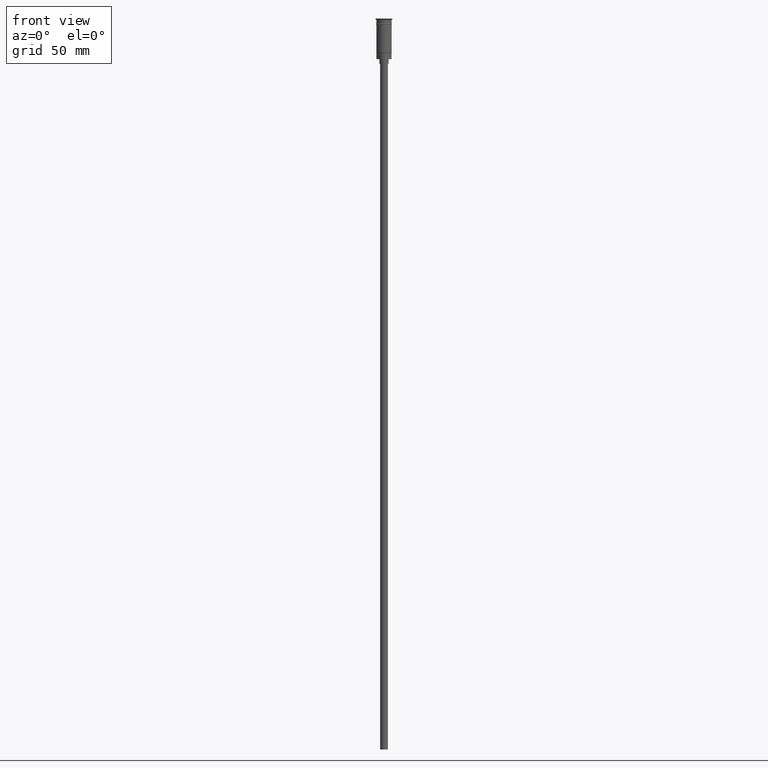
[diagram: clean part render]
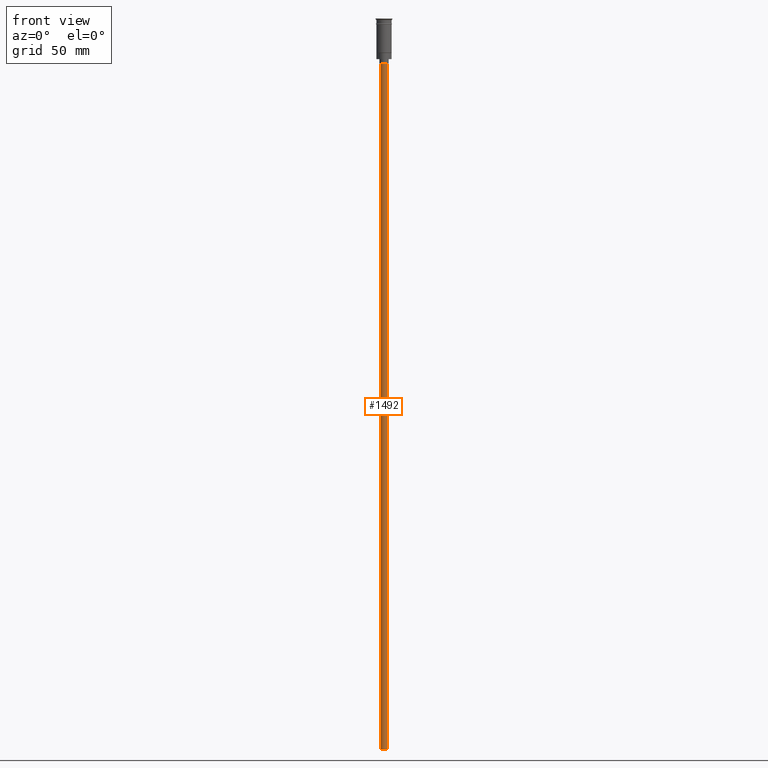
[diagram: same view with one face highlighted and labeled with its STEP entity id]
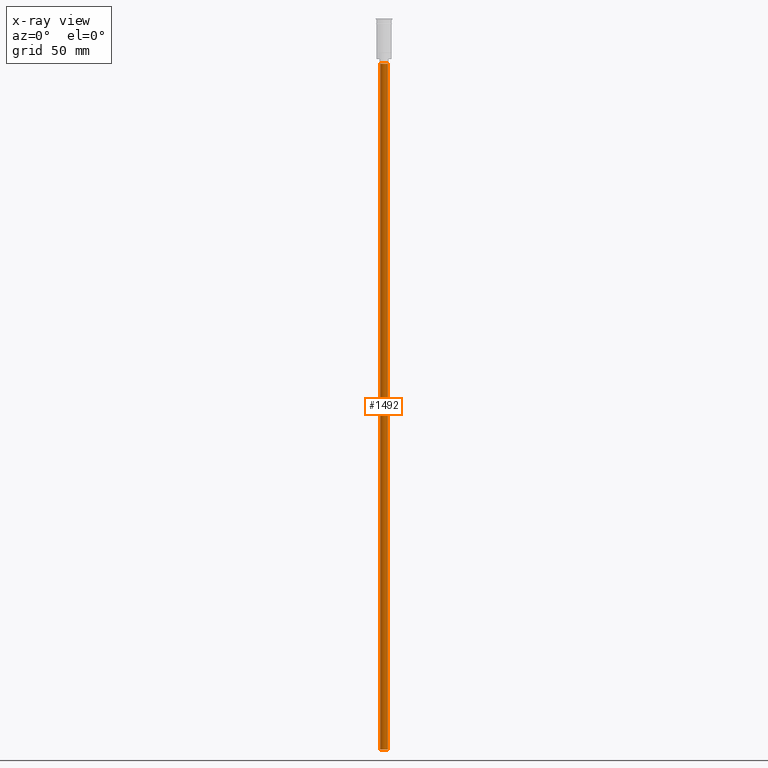
[diagram: x-ray of the same camera — body ghosted, the highlighted face saturated]
A machine part, front view. The second image highlights one B-rep face of the part: STEP entity #1492.
The next image is the same camera in x-ray: the body ghosted, the highlighted face saturated — about 0% of this face is hidden behind the body in this view.
In plain terms, the highlighted cylindrical surface (edge-blend (fillet) strip) has radius 2.5 mm, axis along (-0, -0, 1).
Its self-contained STEP definition (entity closure, byte-faithful):
#13 = VECTOR ( 'NONE', #25, 1000.000000000000000 ) ;
#25 = DIRECTION ( 'NONE',  ( -0.000000000000000000, -0.000000000000000000, 1.000000000000000000 ) ) ;
#30 = ORIENTED_EDGE ( 'NONE', *, *, #430, .T. ) ;
#70 = CARTESIAN_POINT ( 'NONE',  ( 2.500000000000000000, 0.000000000000000000, -476.5000000000000568 ) ) ;
#79 = DIRECTION ( 'NONE',  ( 0.000000000000000000, 0.000000000000000000, -1.000000000000000000 ) ) ;
#80 = DIRECTION ( 'NONE',  ( 1.000000000000000000, 0.000000000000000000, 0.000000000000000000 ) ) ;
#124 = AXIS2_PLACEMENT_3D ( 'NONE', #682, #1191, #80 ) ;
#183 = CARTESIAN_POINT ( 'NONE',  ( 0.000000000000000000, 0.000000000000000000, -476.5000000000000568 ) ) ;
#206 = CYLINDRICAL_SURFACE ( 'NONE', #124, 2.500000000000000000 ) ;
#222 = CIRCLE ( 'NONE', #373, 2.500000000000000000 ) ;
#232 = VERTEX_POINT ( 'NONE', #1368 ) ;
#314 = EDGE_CURVE ( 'NONE', #1511, #1548, #1029, .T. ) ;
#334 = CARTESIAN_POINT ( 'NONE',  ( 0.000000000000000000, 0.000000000000000000, -29.50000000000000000 ) ) ;
#373 = AXIS2_PLACEMENT_3D ( 'NONE', #334, #1179, #1212 ) ;
#430 = EDGE_CURVE ( 'NONE', #933, #232, #617, .T. ) ;
#531 = EDGE_CURVE ( 'NONE', #933, #1511, #566, .T. ) ;
#566 = CIRCLE ( 'NONE', #724, 2.500000000000000000 ) ;
#617 = LINE ( 'NONE', #1134, #13 ) ;
#632 = CARTESIAN_POINT ( 'NONE',  ( -2.500000000000000000, 3.061616997868383141E-16, -476.5000000000000568 ) ) ;
#682 = CARTESIAN_POINT ( 'NONE',  ( 0.000000000000000000, 0.000000000000000000, -476.5000000000000568 ) ) ;
#724 = AXIS2_PLACEMENT_3D ( 'NONE', #183, #79, #1430 ) ;
#752 = DIRECTION ( 'NONE',  ( -0.000000000000000000, -0.000000000000000000, 1.000000000000000000 ) ) ;
#933 = VERTEX_POINT ( 'NONE', #70 ) ;
#936 = VECTOR ( 'NONE', #752, 1000.000000000000000 ) ;
#1029 = LINE ( 'NONE', #632, #936 ) ;
#1134 = CARTESIAN_POINT ( 'NONE',  ( 2.500000000000000000, 0.000000000000000000, -476.5000000000000568 ) ) ;
#1179 = DIRECTION ( 'NONE',  ( 0.000000000000000000, 0.000000000000000000, -1.000000000000000000 ) ) ;
#1191 = DIRECTION ( 'NONE',  ( -0.000000000000000000, -0.000000000000000000, 1.000000000000000000 ) ) ;
#1212 = DIRECTION ( 'NONE',  ( -1.000000000000000000, 0.000000000000000000, 0.000000000000000000 ) ) ;
#1299 = EDGE_LOOP ( 'NONE', ( #1470, #1360, #30, #1476 ) ) ;
#1319 = FACE_OUTER_BOUND ( 'NONE', #1299, .T. ) ;
#1360 = ORIENTED_EDGE ( 'NONE', *, *, #531, .F. ) ;
#1368 = CARTESIAN_POINT ( 'NONE',  ( 2.500000000000000000, 0.000000000000000000, -29.50000000000000000 ) ) ;
#1427 = EDGE_CURVE ( 'NONE', #232, #1548, #222, .T. ) ;
#1430 = DIRECTION ( 'NONE',  ( -1.000000000000000000, 0.000000000000000000, 0.000000000000000000 ) ) ;
#1470 = ORIENTED_EDGE ( 'NONE', *, *, #314, .F. ) ;
#1476 = ORIENTED_EDGE ( 'NONE', *, *, #1427, .T. ) ;
#1485 = CARTESIAN_POINT ( 'NONE',  ( -2.500000000000000000, 3.061616997868383141E-16, -29.50000000000000000 ) ) ;
#1492 = ADVANCED_FACE ( 'NONE', ( #1319 ), #206, .T. ) ;
#1496 = CARTESIAN_POINT ( 'NONE',  ( -2.500000000000000000, 3.061616997868383141E-16, -476.5000000000000568 ) ) ;
#1511 = VERTEX_POINT ( 'NONE', #1496 ) ;
#1548 = VERTEX_POINT ( 'NONE', #1485 ) ;